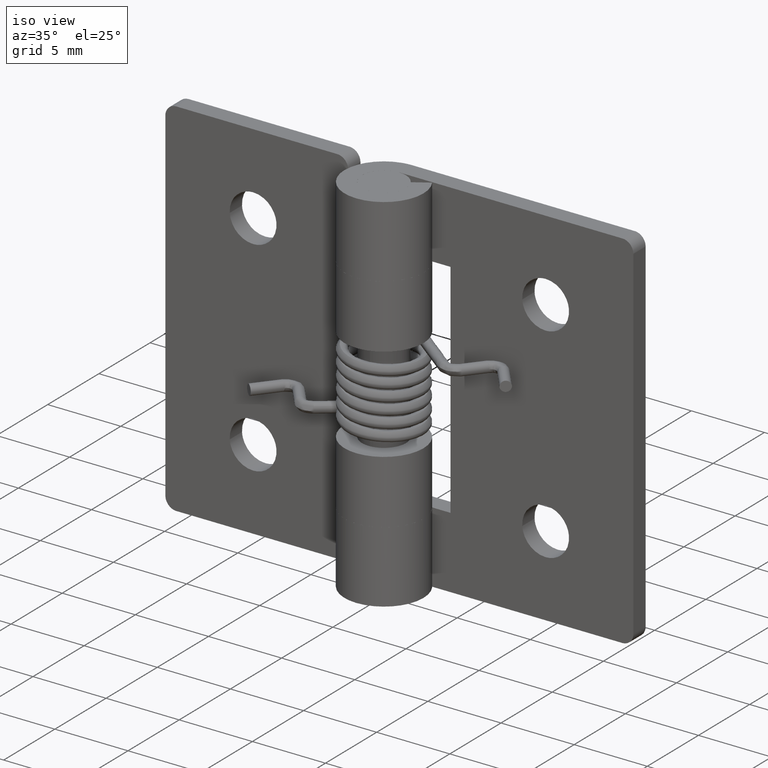
[diagram: clean part render]
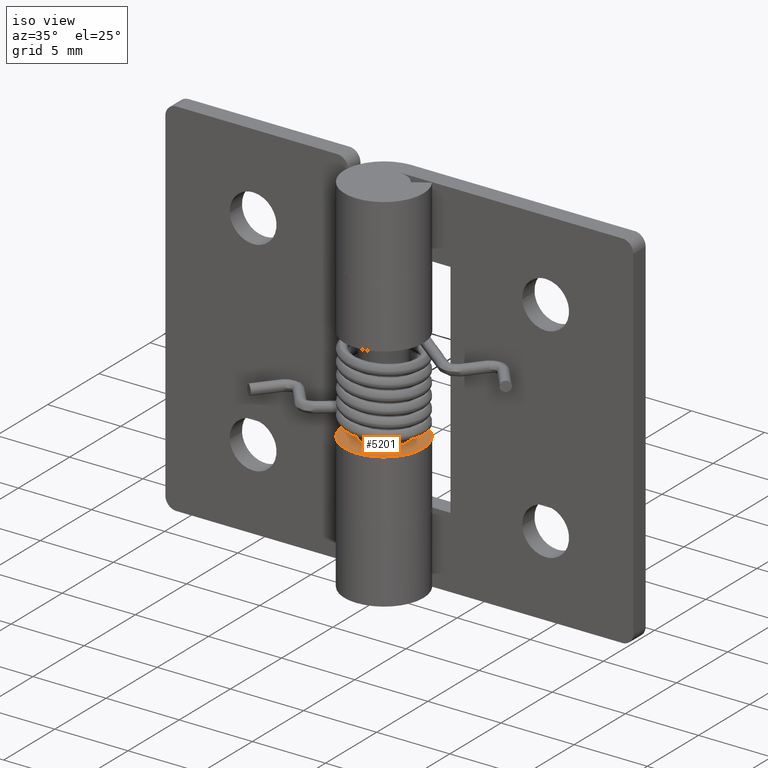
[diagram: same view with one face highlighted and labeled with its STEP entity id]
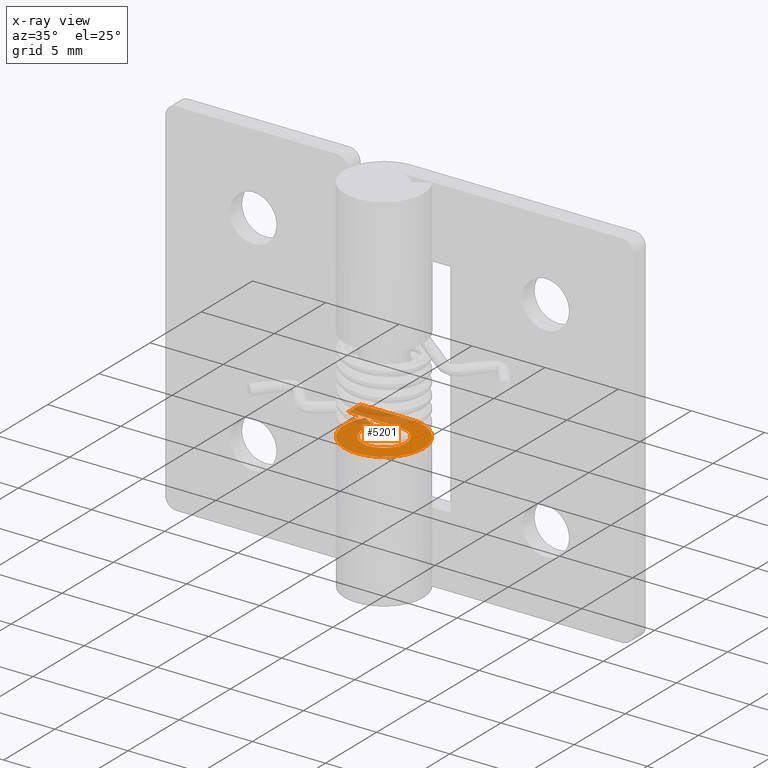
[diagram: x-ray of the same camera — body ghosted, the highlighted face saturated]
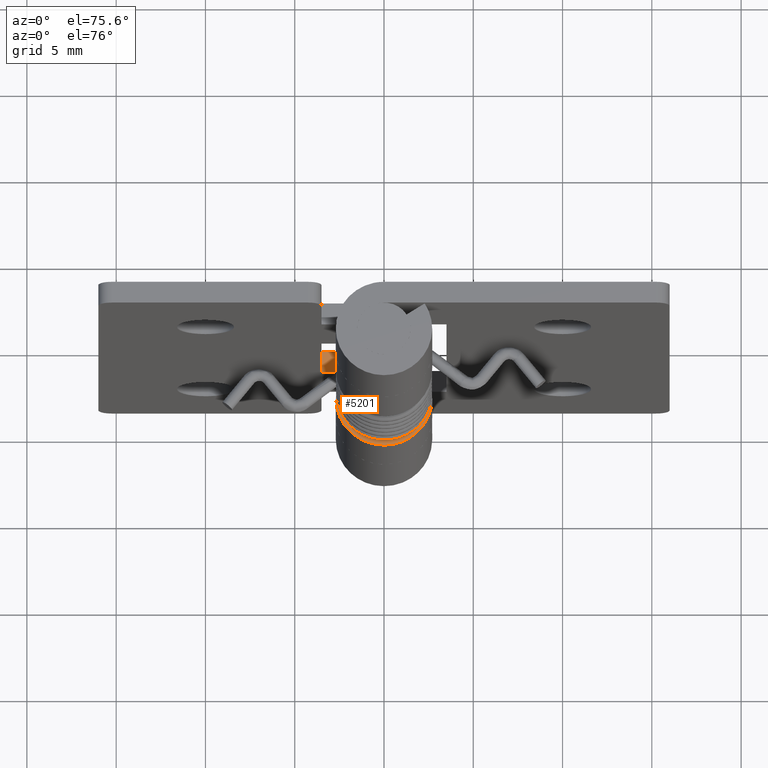
[diagram: same view with one face highlighted and labeled with its STEP entity id]
A machine part, iso view. The second image highlights one B-rep face of the part: STEP entity #5201.
The next image is the same camera in x-ray: the body ghosted, the highlighted face saturated — about 29% of this face is hidden behind the body in this view.
A second angle (auxiliary view) of the same face is appended — the face is thin or edge-on in the first view.
In plain terms, the highlighted face is a freeform B-spline surface patch.
Its self-contained STEP definition (entity closure, byte-faithful):
#5124=CARTESIAN_POINT('',(-3.809678856880899,-2.968778068318955,9.249992000000001));
#5125=CARTESIAN_POINT('',(3.009456178272364,-2.968778068318955,9.249992000000001));
#5126=CARTESIAN_POINT('',(-3.809678856880899,2.969690085810412,9.249992000000001));
#5127=CARTESIAN_POINT('',(3.009456178272364,2.969690085810412,9.249992000000001));
#5128=B_SPLINE_SURFACE_WITH_KNOTS('',1,1,((#5124,#5126),(#5125,#5127)),.UNSPECIFIED.,.F.,.F.,.U.,(2,2),(2,2),(0.0,6.819135035153263),(0.0,5.938468154129367),.UNSPECIFIED.);
#5129=CARTESIAN_POINT('',(-2.277612612579390,1.450002685185184,9.249992000000001));
#5130=VERTEX_POINT('',#5129);
#5131=CARTESIAN_POINT('',(0.0,2.700005000000000,9.249992000000001));
#5132=VERTEX_POINT('',#5131);
#5133=CARTESIAN_POINT('',(-2.277612612579397,1.450002685185188,9.249992000000001));
#5134=CARTESIAN_POINT('',(-3.402766350773327,-0.317348762770274,9.249992000000001));
#5135=CARTESIAN_POINT('',(-1.970205670542062,-1.846162673165317,9.249992000000001));
#5136=CARTESIAN_POINT('',(-0.537644990310795,-3.374976583560359,9.249992000000001));
#5137=CARTESIAN_POINT('',(1.299040511302779,-2.366964458968325,9.249992000000001));
#5138=CARTESIAN_POINT('',(3.135726012916352,-1.358952334376292,9.249992000000001));
#5139=CARTESIAN_POINT('',(2.615419935121488,0.670526332811854,9.249992000000001));
#5140=CARTESIAN_POINT('',(2.095113857326624,2.700005000000000,9.249992000000001));
#5141=CARTESIAN_POINT('',(0.0,2.700005000000000,9.249992000000001));
#5149=(BOUNDED_CURVE()B_SPLINE_CURVE(2,(#5133,#5134,#5135,#5136,#5137,#5138,#5139,#5140,#5141),.UNSPECIFIED.,.F.,.U.)B_SPLINE_CURVE_WITH_KNOTS((3,2,2,2,3),(0.0,0.250000000000000,0.500000000000000,0.750000000000000,1.0),.UNSPECIFIED.)CURVE()GEOMETRIC_REPRESENTATION_ITEM()RATIONAL_B_SPLINE_CURVE((1.0,0.790045133626194,1.0,0.790045133626194,1.0,0.790045133626194,1.0,0.790045133626194,1.0))REPRESENTATION_ITEM(''));
#5150=EDGE_CURVE('',#5130,#5132,#5149,.T.);
#5151=ORIENTED_EDGE('',*,*,#5150,.T.);
#5152=CARTESIAN_POINT('',(-3.500000000000000,2.700005000000000,9.249992000000001));
#5153=VERTEX_POINT('',#5152);
#5154=CARTESIAN_POINT('',(0.0,2.700005000000000,9.249992000000001));
#5155=CARTESIAN_POINT('',(-3.500000000000000,2.700005000000000,9.249992000000001));
#5156=QUASI_UNIFORM_CURVE('',1,(#5154,#5155),.UNSPECIFIED.,.F.,.U.);
#5157=EDGE_CURVE('',#5132,#5153,#5156,.T.);
#5158=ORIENTED_EDGE('',*,*,#5157,.T.);
#5159=CARTESIAN_POINT('',(-3.500000000000000,1.500000000000000,9.249992000000001));
#5160=VERTEX_POINT('',#5159);
#5161=CARTESIAN_POINT('',(-3.500000000000000,2.700005000000000,9.249992000000001));
#5162=CARTESIAN_POINT('',(-3.500000000000000,1.500000000000000,9.249992000000001));
#5163=QUASI_UNIFORM_CURVE('',1,(#5161,#5162),.UNSPECIFIED.,.F.,.U.);
#5164=EDGE_CURVE('',#5153,#5160,#5163,.T.);
#5165=ORIENTED_EDGE('',*,*,#5164,.T.);
#5166=CARTESIAN_POINT('',(9.184352E-017,1.500000000000000,9.249992000000001));
#5167=VERTEX_POINT('',#5166);
#5168=CARTESIAN_POINT('',(-3.500000000000000,1.500000000000000,9.249992000000001));
#5169=CARTESIAN_POINT('',(9.184352E-017,1.500000000000000,9.249992000000001));
#5170=QUASI_UNIFORM_CURVE('',1,(#5168,#5169),.UNSPECIFIED.,.F.,.U.);
#5171=EDGE_CURVE('',#5160,#5167,#5170,.T.);
#5172=ORIENTED_EDGE('',*,*,#5171,.T.);
#5173=CARTESIAN_POINT('',(-1.265337997103374,0.805555555555557,9.249992000000001));
#5174=VERTEX_POINT('',#5173);
#5175=CARTESIAN_POINT('',(-1.265337997103374,0.805555555555557,9.249992000000001));
#5176=CARTESIAN_POINT('',(-1.890422249647683,-0.176304541715817,9.249992000000001));
#5177=CARTESIAN_POINT('',(-1.094556678899888,-1.025644030195491,9.249992000000001));
#5178=CARTESIAN_POINT('',(-0.298691108152093,-1.874983518675166,9.249992000000001));
#5179=CARTESIAN_POINT('',(0.721687836487032,-1.314977819838292,9.249992000000001));
#5180=CARTESIAN_POINT('',(1.742066781126156,-0.754972121001419,9.249992000000001));
#5181=CARTESIAN_POINT('',(1.453008384311226,0.372513939499290,9.249992000000001));
#5182=CARTESIAN_POINT('',(1.163949987496296,1.499999999999999,9.249992000000001));
#5183=CARTESIAN_POINT('',(0.0,1.500000000000000,9.249992000000001));
#5191=(BOUNDED_CURVE()B_SPLINE_CURVE(2,(#5175,#5176,#5177,#5178,#5179,#5180,#5181,#5182,#5183),.UNSPECIFIED.,.F.,.U.)B_SPLINE_CURVE_WITH_KNOTS((3,2,2,2,3),(0.0,0.250000000000000,0.500000000000000,0.750000000000000,1.0),.UNSPECIFIED.)CURVE()GEOMETRIC_REPRESENTATION_ITEM()RATIONAL_B_SPLINE_CURVE((1.0,0.790045133626194,1.0,0.790045133626194,1.0,0.790045133626194,1.0,0.790045133626194,1.0))REPRESENTATION_ITEM(''));
#5192=EDGE_CURVE('',#5174,#5167,#5191,.T.);
#5193=ORIENTED_EDGE('',*,*,#5192,.F.);
#5194=CARTESIAN_POINT('',(-1.265337997103374,0.805555555555557,9.249992000000001));
#5195=CARTESIAN_POINT('',(-2.277612612579390,1.450002685185184,9.249992000000001));
#5196=QUASI_UNIFORM_CURVE('',1,(#5194,#5195),.UNSPECIFIED.,.F.,.U.);
#5197=EDGE_CURVE('',#5174,#5130,#5196,.T.);
#5198=ORIENTED_EDGE('',*,*,#5197,.T.);
#5199=EDGE_LOOP('',(#5151,#5158,#5165,#5172,#5193,#5198));
#5200=FACE_OUTER_BOUND('',#5199,.T.);
#5201=ADVANCED_FACE('',(#5200),#5128,.T.);